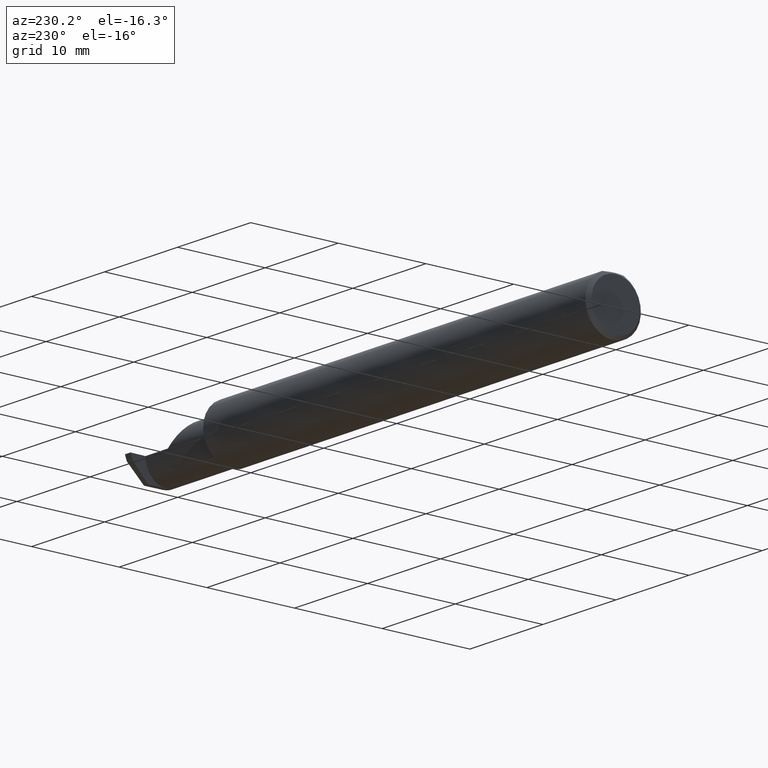
[diagram: clean part render]
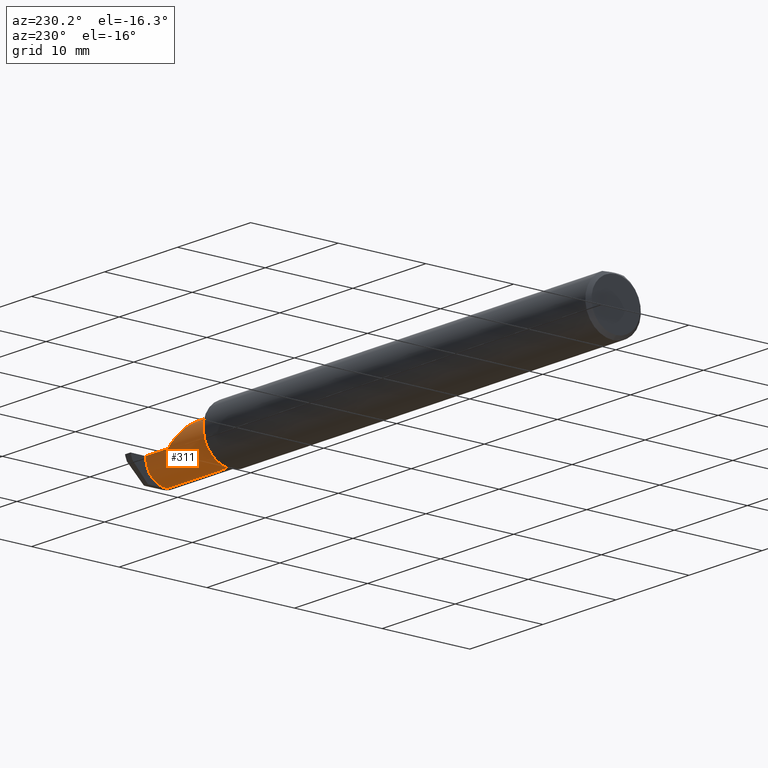
[diagram: same view with one face highlighted and labeled with its STEP entity id]
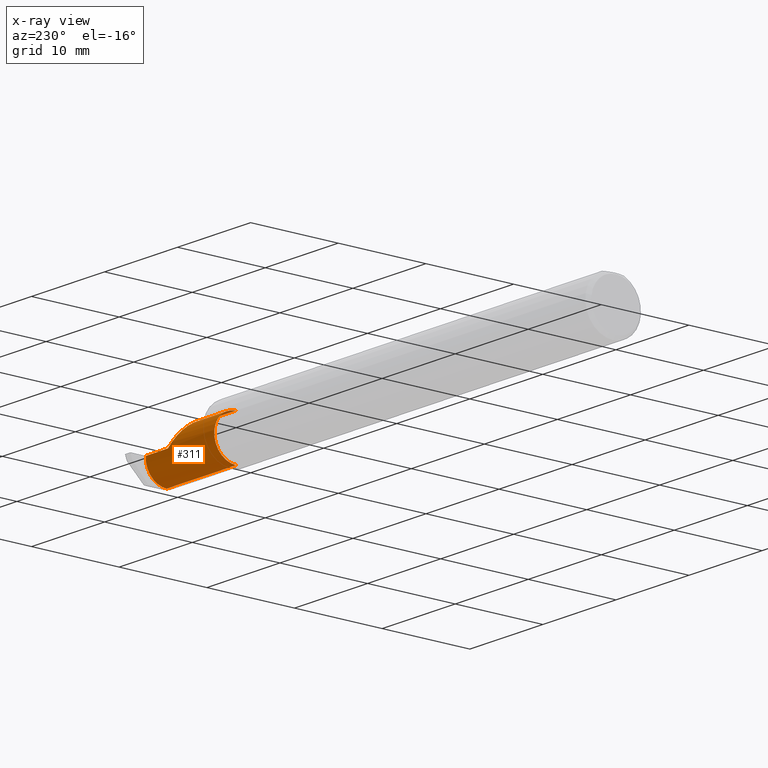
[diagram: x-ray of the same camera — body ghosted, the highlighted face saturated]
A machine part, auxiliary view. The second image highlights one B-rep face of the part: STEP entity #311.
The next image is the same camera in x-ray: the body ghosted, the highlighted face saturated — about 1% of this face is hidden behind the body in this view.
In plain terms, the highlighted cylindrical surface (edge-blend (fillet) strip) has radius 2.4892 mm, axis along (-1, -0, -0).
Its self-contained STEP definition (entity closure, byte-faithful):
#17 = VECTOR ( 'NONE', #231, 39.37007874015748143 ) ;
#23 = VERTEX_POINT ( 'NONE', #561 ) ;
#41 = AXIS2_PLACEMENT_3D ( 'NONE', #464, #394, #341 ) ;
#47 = CARTESIAN_POINT ( 'NONE',  ( 2.292592929112563738, 0.05415000000000004532, 0.05740707088743669112 ) ) ;
#53 = LINE ( 'NONE', #540, #135 ) ;
#64 = DIRECTION ( 'NONE',  ( -1.000000000000000000, -0.000000000000000000, -0.000000000000000000 ) ) ;
#71 = LINE ( 'NONE', #358, #17 ) ;
#74 = DIRECTION ( 'NONE',  ( -1.000000000000000000, -0.000000000000000000, -0.000000000000000000 ) ) ;
#98 = ORIENTED_EDGE ( 'NONE', *, *, #510, .F. ) ;
#109 = ORIENTED_EDGE ( 'NONE', *, *, #733, .T. ) ;
#117 = CARTESIAN_POINT ( 'NONE',  ( 2.474353376795600301, -0.04385000000000004172, -0.09799999999999998990 ) ) ;
#125 = ORIENTED_EDGE ( 'NONE', *, *, #429, .T. ) ;
#128 = CARTESIAN_POINT ( 'NONE',  ( 2.469500000000000028, 0.05414999123725664637, -4.144270477499208333E-05 ) ) ;
#135 = VECTOR ( 'NONE', #233, 39.37007874015748143 ) ;
#142 = CARTESIAN_POINT ( 'NONE',  ( 2.252000000000000668, -0.04385000000000001397, 0.09800000000000000377 ) ) ;
#157 = AXIS2_PLACEMENT_3D ( 'NONE', #783, #64, #238 ) ;
#177 = EDGE_CURVE ( 'NONE', #287, #646, #534, .T. ) ;
#231 = DIRECTION ( 'NONE',  ( -1.000000000000000000, -0.000000000000000000, -0.000000000000000000 ) ) ;
#233 = DIRECTION ( 'NONE',  ( 1.000000000000000000, 0.000000000000000000, 0.000000000000000000 ) ) ;
#238 = DIRECTION ( 'NONE',  ( 0.000000000000000000, 0.000000000000000000, 1.000000000000000000 ) ) ;
#283 = CARTESIAN_POINT ( 'NONE',  ( 2.252000000000000668, -0.04385000000000001397, 0.09800000000000000377 ) ) ;
#285 = EDGE_CURVE ( 'NONE', #23, #337, #53, .T. ) ;
#287 = VERTEX_POINT ( 'NONE', #411 ) ;
#288 = CARTESIAN_POINT ( 'NONE',  ( 2.100000000000000089, -0.04385000000000001397, 0.000000000000000000 ) ) ;
#290 = VECTOR ( 'NONE', #74, 39.37007874015748143 ) ;
#294 = FACE_OUTER_BOUND ( 'NONE', #399, .T. ) ;
#295 = VERTEX_POINT ( 'NONE', #117 ) ;
#298 = CARTESIAN_POINT ( 'NONE',  ( 2.075000000000000178, -0.04385000000000001397, 0.09800000000000000377 ) ) ;
#305 = ORIENTED_EDGE ( 'NONE', *, *, #320, .F. ) ;
#309 = CARTESIAN_POINT ( 'NONE',  ( 2.474354867654527723, 0.002850604310161259161, -0.09800000000000005929 ) ) ;
#311 = ADVANCED_FACE ( 'NONE', ( #294 ), #721, .T. ) ;
#320 = EDGE_CURVE ( 'NONE', #654, #424, #661, .T. ) ;
#323 = ORIENTED_EDGE ( 'NONE', *, *, #285, .T. ) ;
#337 = VERTEX_POINT ( 'NONE', #433 ) ;
#341 = DIRECTION ( 'NONE',  ( 0.000000000000000000, 0.000000000000000000, 1.000000000000000000 ) ) ;
#357 = ORIENTED_EDGE ( 'NONE', *, *, #177, .F. ) ;
#358 = CARTESIAN_POINT ( 'NONE',  ( 2.075000000000000178, -0.04385000000000000703, -0.09800000000000000377 ) ) ;
#370 = CARTESIAN_POINT ( 'NONE',  ( 2.100000000000000089, -0.04385000000000000009, -0.09800000000000000377 ) ) ;
#383 = VERTEX_POINT ( 'NONE', #370 ) ;
#394 = DIRECTION ( 'NONE',  ( -1.000000000000000000, -0.000000000000000000, -0.000000000000000000 ) ) ;
#399 = EDGE_LOOP ( 'NONE', ( #629, #125, #98, #305, #564, #323, #109, #357 ) ) ;
#411 = CARTESIAN_POINT ( 'NONE',  ( 2.470482208140545755, 0.05115612325138272493, -0.02403823089877875352 ) ) ;
#418 = AXIS2_PLACEMENT_3D ( 'NONE', #288, #602, #668 ) ;
#424 = VERTEX_POINT ( 'NONE', #491 ) ;
#429 = EDGE_CURVE ( 'NONE', #295, #383, #71, .T. ) ;
#433 = CARTESIAN_POINT ( 'NONE',  ( 2.469500000000000028, 0.05414999999999999675, 5.204742006436173641E-17 ) ) ;
#464 = CARTESIAN_POINT ( 'NONE',  ( 2.469500000000000028, -0.04385000000000001397, 0.000000000000000000 ) ) ;
#472 = CARTESIAN_POINT ( 'NONE',  ( 2.470482208140545755, 0.05115612325138272493, -0.02403823089877875352 ) ) ;
#491 = CARTESIAN_POINT ( 'NONE',  ( 2.100000000000000089, -0.04385000000000001397, 0.09800000000000000377 ) ) ;
#510 = EDGE_CURVE ( 'NONE', #424, #383, #558, .T. ) ;
#512 = CARTESIAN_POINT ( 'NONE',  ( 2.350000000000000089, 0.05414999999999988572, 1.836970198721028825E-17 ) ) ;
#534 =( BOUNDED_CURVE ( )  B_SPLINE_CURVE ( 3, ( #472, #712, #729, #128 ),
 .UNSPECIFIED., .F., .T. ) 
 B_SPLINE_CURVE_WITH_KNOTS ( ( 4, 4 ),
 ( 4.463962699426424763, 4.711356644242685299 ),
 .UNSPECIFIED. ) 
 CURVE ( )  GEOMETRIC_REPRESENTATION_ITEM ( )  RATIONAL_B_SPLINE_CURVE ( ( 1.000000000000000000, 0.9949061863229000657, 0.9949061863229000657, 1.000000000000000000 ) ) 
 REPRESENTATION_ITEM ( '' )  );
#540 = CARTESIAN_POINT ( 'NONE',  ( 2.075000000000000178, 0.05414999999999998981, 5.204748896376247001E-17 ) ) ;
#558 = CIRCLE ( 'NONE', #418, 0.09800000000000000377 ) ;
#561 = CARTESIAN_POINT ( 'NONE',  ( 2.350000000000000089, 0.05414999999999988572, 1.836970198721028825E-17 ) ) ;
#564 = ORIENTED_EDGE ( 'NONE', *, *, #706, .T. ) ;
#602 = DIRECTION ( 'NONE',  ( -1.000000000000000000, -0.000000000000000000, -0.000000000000000000 ) ) ;
#616 = CARTESIAN_POINT ( 'NONE',  ( 2.472853341463135290, 0.03970102213383034512, -0.06931214282740399968 ) ) ;
#620 = CARTESIAN_POINT ( 'NONE',  ( 2.470482208140545755, 0.05115612325138272493, -0.02403823089877875352 ) ) ;
#622 = CIRCLE ( 'NONE', #41, 0.09800000000000000377 ) ;
#623 = CARTESIAN_POINT ( 'NONE',  ( 2.469500000000000028, 0.05414999123725664637, -4.144270477499208333E-05 ) ) ;
#627 = EDGE_CURVE ( 'NONE', #295, #287, #690, .T. ) ;
#629 = ORIENTED_EDGE ( 'NONE', *, *, #627, .F. ) ;
#646 = VERTEX_POINT ( 'NONE', #623 ) ;
#654 = VERTEX_POINT ( 'NONE', #142 ) ;
#661 = LINE ( 'NONE', #298, #290 ) ;
#668 = DIRECTION ( 'NONE',  ( 0.000000000000000000, 0.000000000000000000, 1.000000000000000000 ) ) ;
#677 = CARTESIAN_POINT ( 'NONE',  ( 2.474353376795600301, -0.04385000000000004172, -0.09799999999999998990 ) ) ;
#690 =( BOUNDED_CURVE ( )  B_SPLINE_CURVE ( 3, ( #677, #309, #616, #620 ),
 .UNSPECIFIED., .F., .F. ) 
 B_SPLINE_CURVE_WITH_KNOTS ( ( 4, 4 ),
 ( 3.140983202202990654, 4.463962699426421210 ),
 .UNSPECIFIED. ) 
 CURVE ( )  GEOMETRIC_REPRESENTATION_ITEM ( )  RATIONAL_B_SPLINE_CURVE ( ( 1.000000000000000000, 0.8593853101475603662, 0.8593853101475603662, 1.000000000000000000 ) ) 
 REPRESENTATION_ITEM ( '' )  );
#706 = EDGE_CURVE ( 'NONE', #654, #23, #782, .T. ) ;
#712 = CARTESIAN_POINT ( 'NONE',  ( 2.470160734290016702, 0.05314349951121607324, -0.01618353831829626166 ) ) ;
#721 = CYLINDRICAL_SURFACE ( 'NONE', #157, 0.09800000000000000377 ) ;
#729 = CARTESIAN_POINT ( 'NONE',  ( 2.469831655309489893, 0.05414656493488106959, -0.008143655253979649455 ) ) ;
#733 = EDGE_CURVE ( 'NONE', #337, #646, #622, .T. ) ;
#754 = CARTESIAN_POINT ( 'NONE',  ( 2.252000000000000668, 0.01355707088743670317, 0.09799999999999996214 ) ) ;
#782 =( BOUNDED_CURVE ( )  B_SPLINE_CURVE ( 3, ( #283, #754, #47, #512 ),
 .UNSPECIFIED., .F., .T. ) 
 B_SPLINE_CURVE_WITH_KNOTS ( ( 4, 4 ),
 ( 0.000000000000000000, 1.570796326794896558 ),
 .UNSPECIFIED. ) 
 CURVE ( )  GEOMETRIC_REPRESENTATION_ITEM ( )  RATIONAL_B_SPLINE_CURVE ( ( 1.000000000000000000, 0.8047378541243649375, 0.8047378541243649375, 1.000000000000000000 ) ) 
 REPRESENTATION_ITEM ( '' )  );
#783 = CARTESIAN_POINT ( 'NONE',  ( 2.075000000000000178, -0.04385000000000001397, 0.000000000000000000 ) ) ;